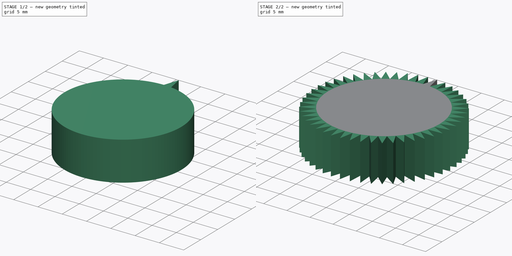
[diagram: build sequence overview — one tinted view per stage of 2, left to right]
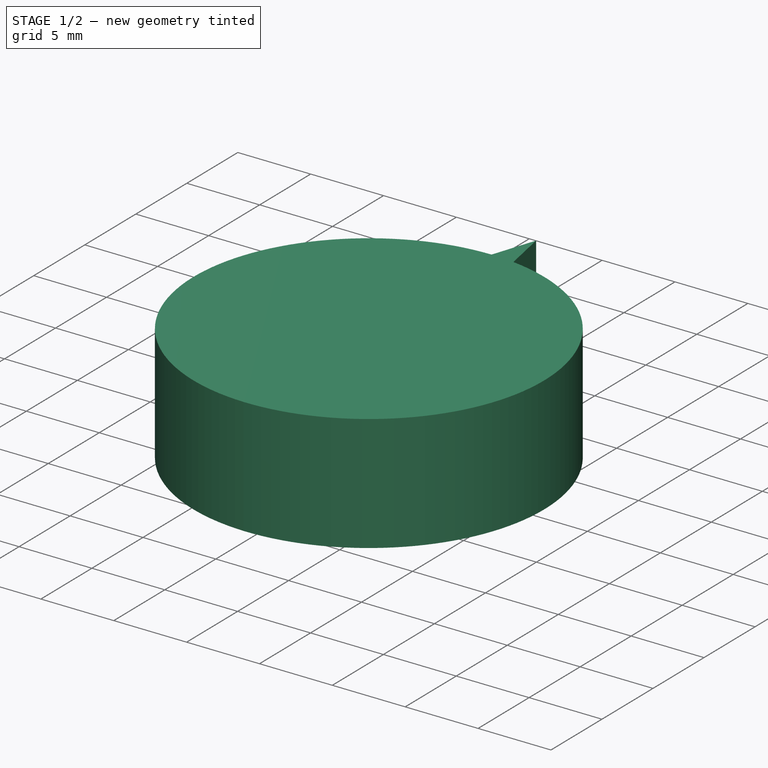
[diagram: stage 1 of 2 — iso view after this stage's code; geometry added in this stage tinted green]
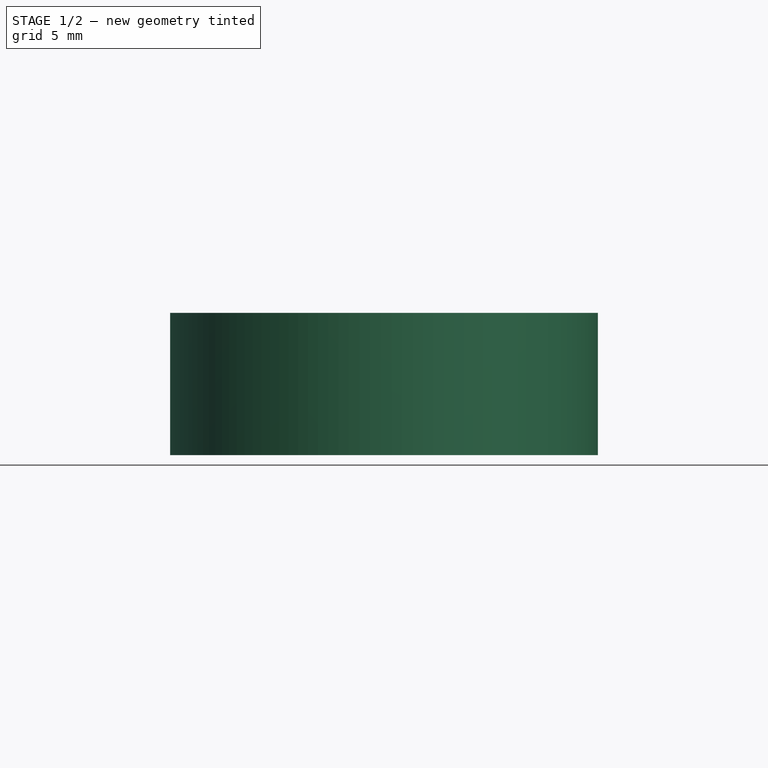
[diagram: stage 1 of 2 — front view after this stage's code; geometry added in this stage tinted green]
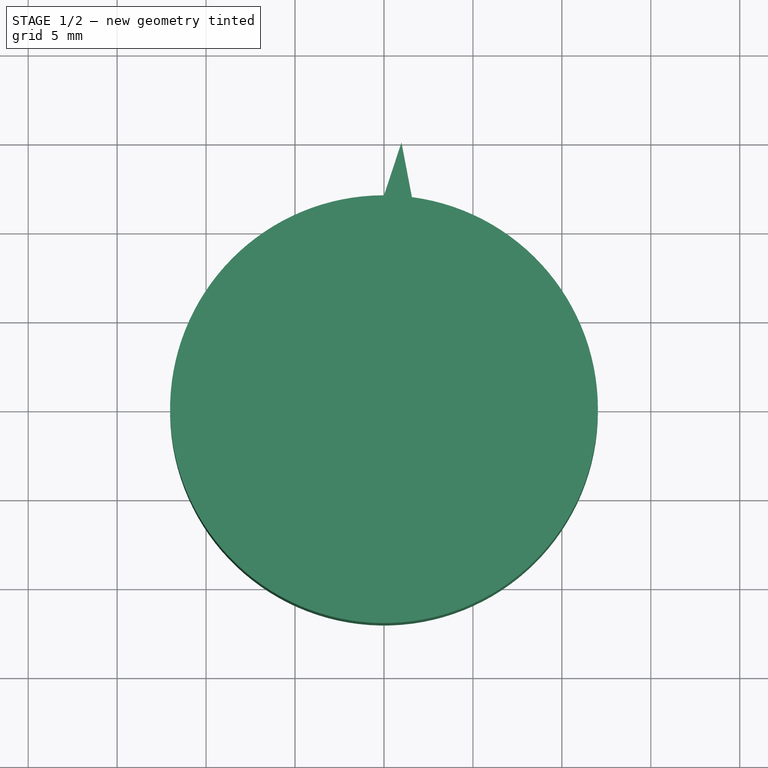
[diagram: stage 1 of 2 — top view after this stage's code; geometry added in this stage tinted green]
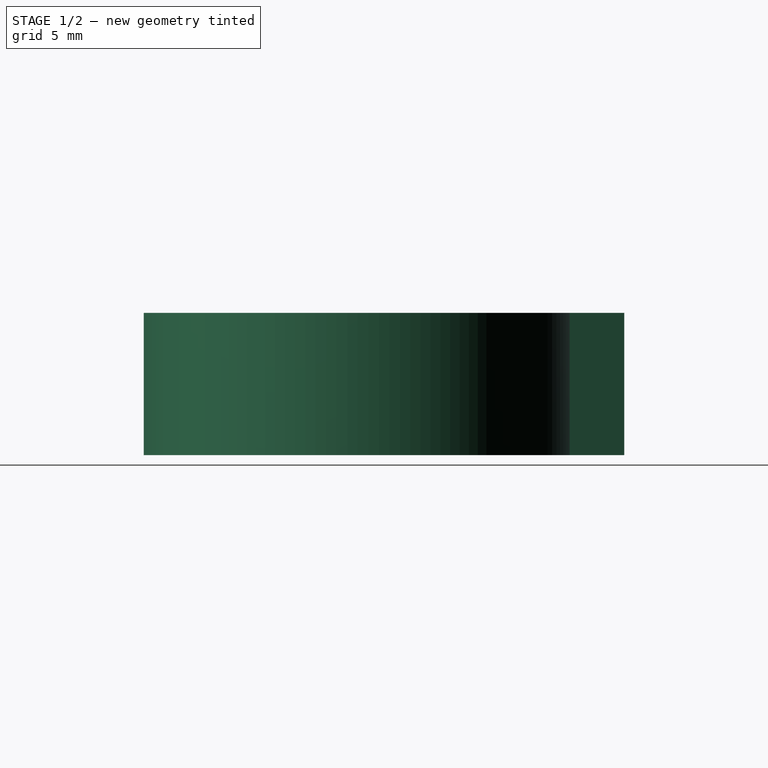
[diagram: stage 1 of 2 — right view after this stage's code; geometry added in this stage tinted green]
FCSTD DOCUMENT  (FreeCAD 1.0R39109 (Git))
Label: gt2_spikes
License: All rights reserved
LicenseURL: https://en.wikipedia.org/wiki/All_rights_reserved
objects: App::VarSet×1, Sketcher::SketchObject×1, PartDesign::Pad×1, PartDesign::PolarPattern×1, PartDesign::Body×1
note: 8 computed .brp shape members not serialized (recipe doc carries the construction recipe); baked Part::Feature solids carry a one-line shape summary decoded from their .brp

FEATURE [App::VarSet] VarSet
  H_ = 3
  N_ = 48
  OD_ = 30.0497
  PD_ = 30.5577
  PI = 3.14159
  P_ = 2
  TH_ = 82.5
  U_ = 0.254
  expr: OD_ = PD_ - 2 * U_
  expr: PD_ = P_ * N_ / PI
  expr: PI = 3.1415926
  expr: TH_ = 90 - 360 / N_
FEATURE [Sketcher::SketchObject] Sketch
  ArcFitTolerance = 1e-06
  AttachmentSupport = -> [XY_Plane]
  FullyConstrained = true
  MakeInternals = false
  MapMode = 5
  expr: Constraints[12] = <<VarSet>>.TH_
  expr: Constraints[15] = (90 deg - <<VarSet>>.TH_) / 2
  expr: Constraints[1] = <<VarSet>>.OD_
  expr: Constraints[3] = <<VarSet>>.OD_ - <<VarSet>>.H_ * 2
  sketch-geometry (10):
    g0: Circle [constr] CenterX=0 CenterY=0 CenterZ=0 NormalX=0 NormalY=0 NormalZ=1 AngleXU=0 Radius=15.0249
    g1: ArcOfCircle CenterX=0 CenterY=0 CenterZ=0 NormalX=0 NormalY=0 NormalZ=1 AngleXU=0 Radius=12.0249 StartAngle=1.5708 EndAngle=7.72308
    g2: LineSegment [constr] StartX=0 StartY=0 StartZ=0 EndX=0 EndY=15.0249 EndZ=0
    g3: LineSegment [constr] StartX=0 StartY=0 StartZ=0 EndX=15.0249 EndY=0 EndZ=0
    g4: LineSegment [constr] StartX=0 StartY=0 StartZ=0 EndX=1.96114 EndY=14.8963 EndZ=0
    g5: LineSegment [constr] StartX=0 StartY=0 StartZ=0 EndX=0.982674 EndY=14.9927 EndZ=0
    g6: LineSegment [constr] StartX=0 StartY=0 StartZ=0 EndX=0 EndY=12.0249 EndZ=0
    g7: LineSegment [constr] StartX=0 StartY=0 StartZ=0 EndX=1.56956 EndY=11.922 EndZ=0
    g8: LineSegment StartX=0 StartY=12.0249 StartZ=0 EndX=0.982674 EndY=14.9927 EndZ=0
    g9: LineSegment StartX=1.56956 StartY=11.922 StartZ=0 EndX=0.982674 EndY=14.9927 EndZ=0
  constraints (27):
    c: Coincident(g0,g-1)
    c: Diameter(g0) = 30.0497
    c: Coincident(g1,g0)
    c: Diameter(g1) = 24.0497
    c: Coincident(g2,g0)
    c: PointOnObject(g2,g0)
    c: Vertical(g2)
    c: Coincident(g3,g0)
    c: PointOnObject(g3,g0)
    c: Horizontal(g3)
    c: Coincident(g4,g0)
    c: PointOnObject(g4,g0)
    c: Angle(g3,g4) = 1.4399
    c: Coincident(g5,g0)
    c: PointOnObject(g5,g0)
    c: Angle(g5,g2) = 0.0654498
    c: Coincident(g6,g0)
    c: PointOnObject(g6,g1)
    c: Vertical(g6)
    c: Coincident(g7,g0)
    c: Parallel(g7,g4)
    c: Coincident(g8,g6)
    c: Coincident(g8,g5)
    c: Coincident(g9,g7)
    c: Coincident(g9,g5)
    c: Coincident(g1,g7)
    c: PointOnObject(g1,g2)
FEATURE [PartDesign::Pad] Pad
  Direction = (0,0,1)
  Length = 8
  Length2 = 10
  Profile = -> Sketch
  ReferenceAxis = -> Sketch [N_Axis]
  Refine = true
  Suppressed = false
  Type = 0
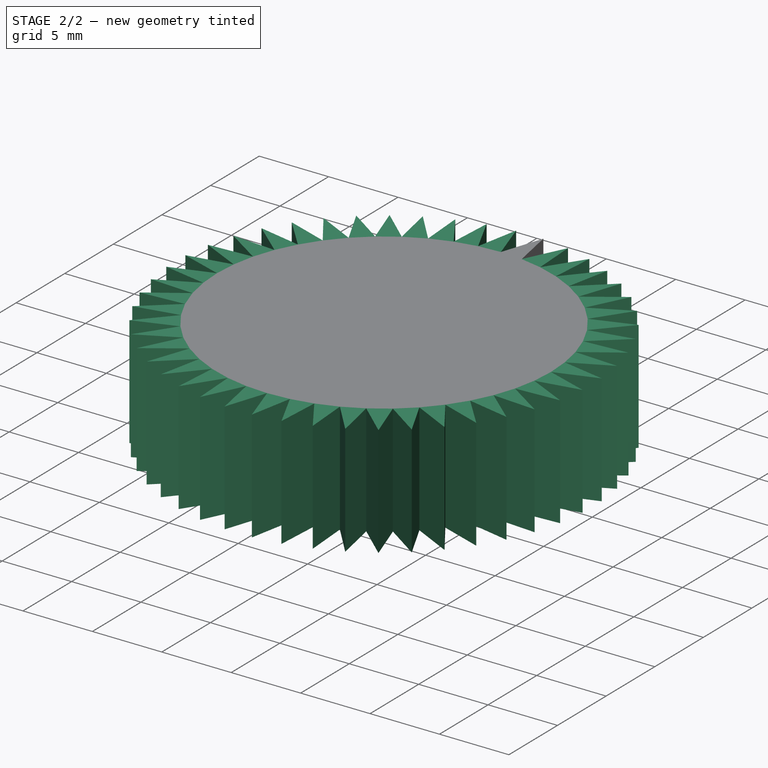
[diagram: stage 2 of 2 — iso view after this stage's code; geometry added in this stage tinted green]
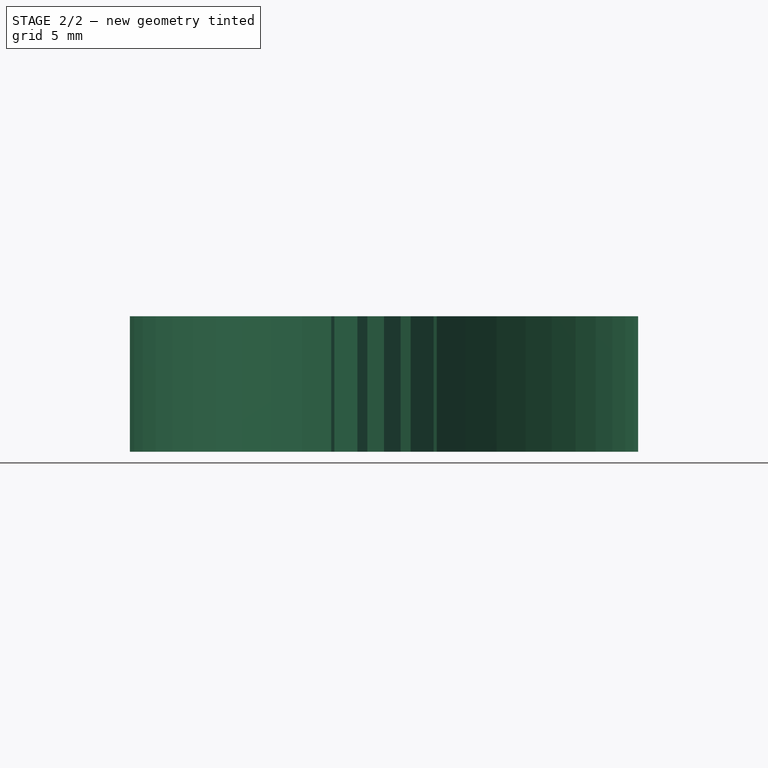
[diagram: stage 2 of 2 — front view after this stage's code; geometry added in this stage tinted green]
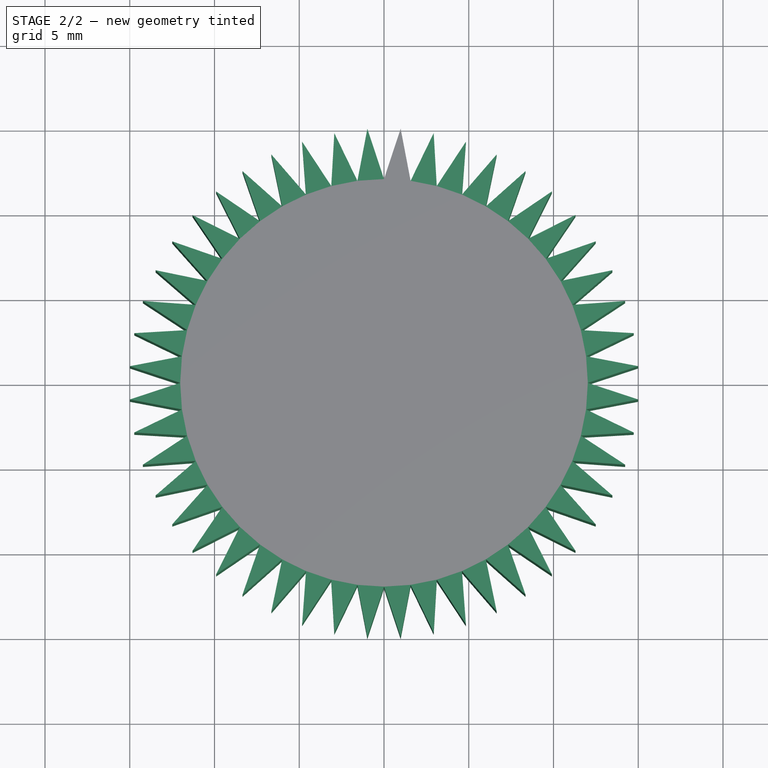
[diagram: stage 2 of 2 — top view after this stage's code; geometry added in this stage tinted green]
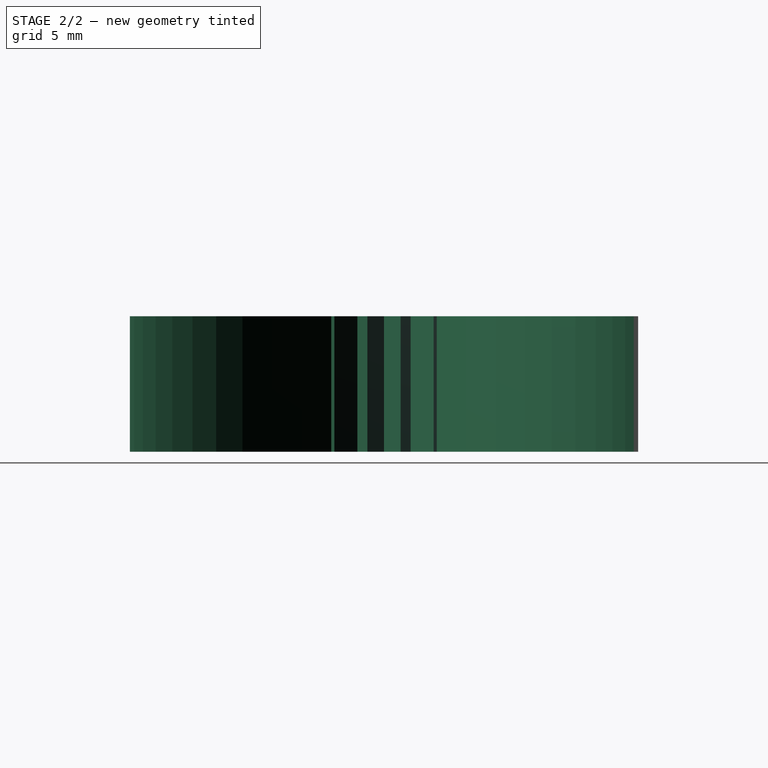
[diagram: stage 2 of 2 — right view after this stage's code; geometry added in this stage tinted green]
FEATURE [PartDesign::PolarPattern] PolarPattern
  Angle = 360
  Axis = -> Z_Axis
  BaseFeature = -> Pad
  Mode = 0
  Occurrences = 48
  Offset = 120
  Refine = true
  Suppressed = false
  TransformMode = 1
  expr: Occurrences = <<VarSet>>.N_
FEATURE [PartDesign::Body] Body
  AllowCompound = false
  Group = -> [VarSet,Sketch,Pad,PolarPattern]
  Origin = -> Origin
  Tip = -> PolarPattern
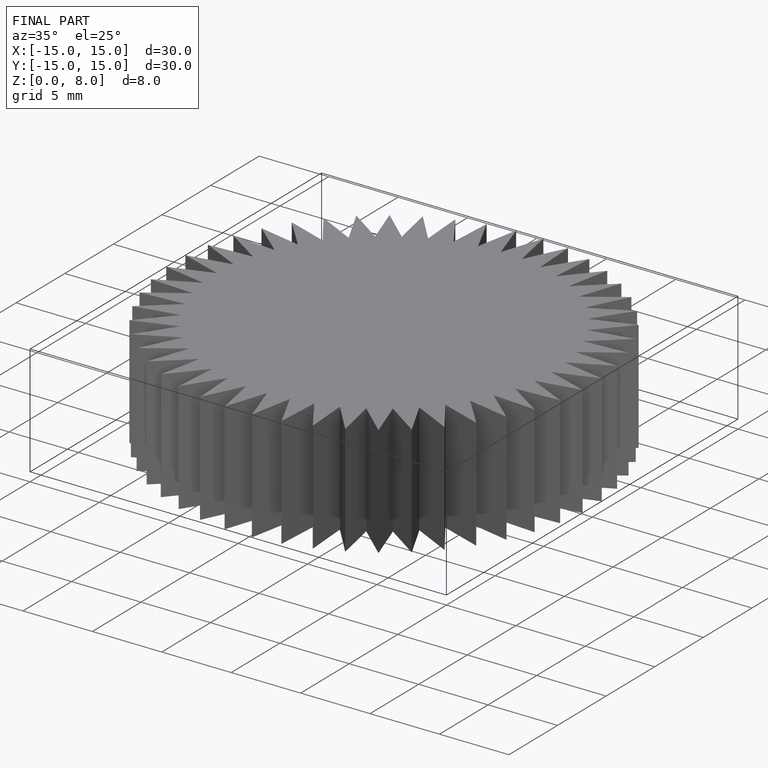
[diagram: finished part — iso view with bounding-box wireframe]
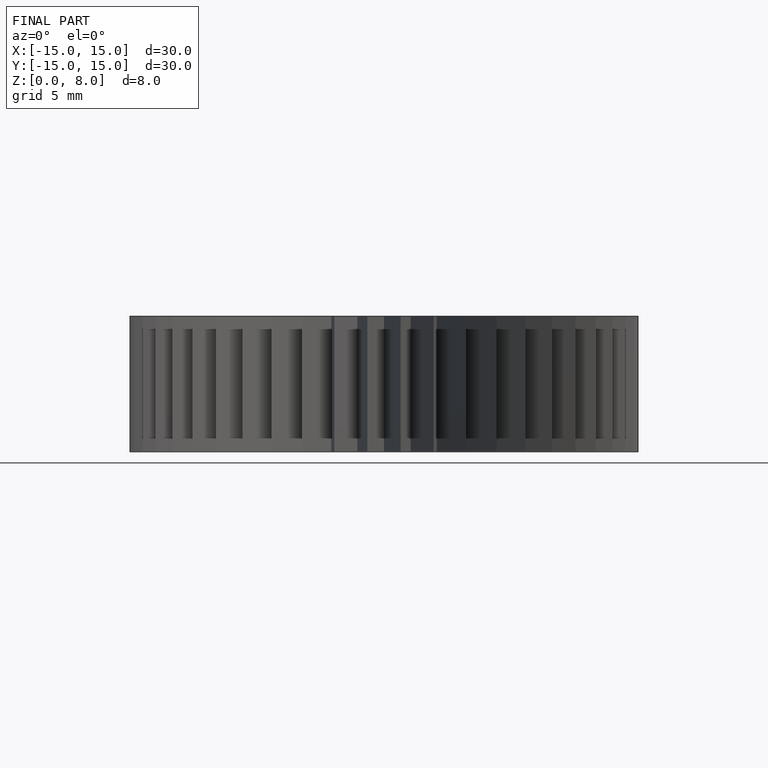
[diagram: finished part — front view with bounding-box wireframe]
